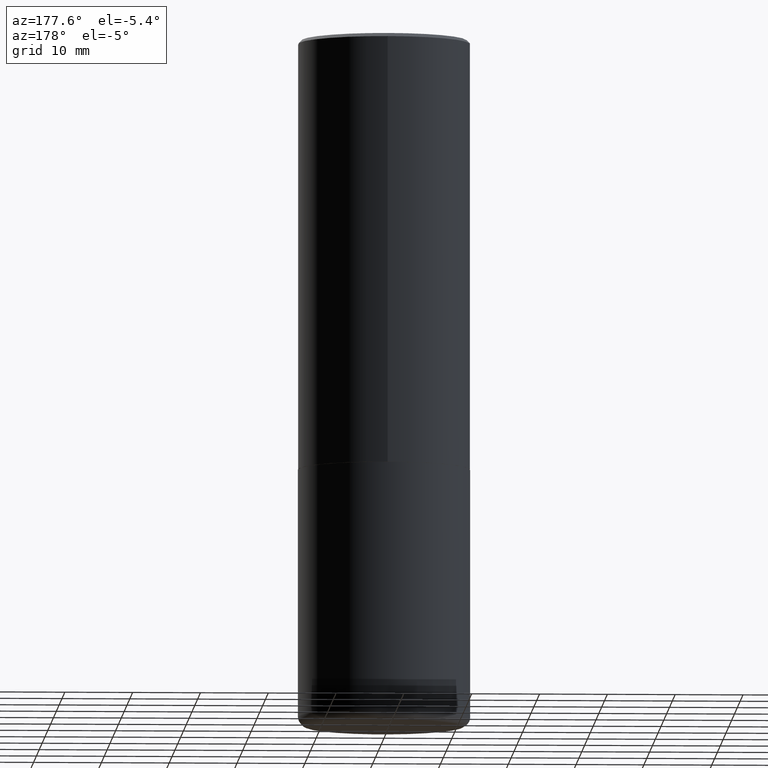
[diagram: clean part render]
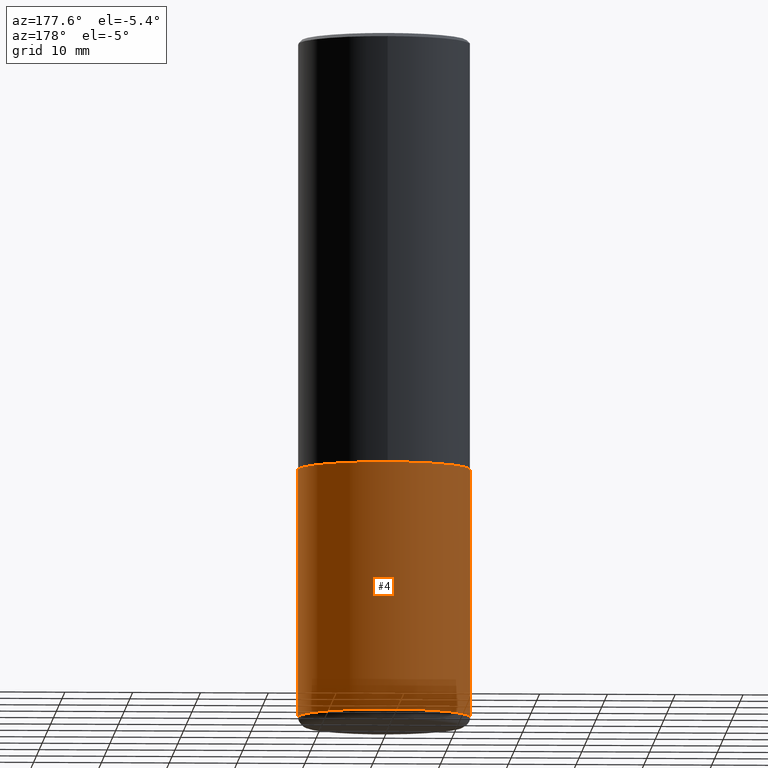
[diagram: same view with one face highlighted and labeled with its STEP entity id]
A machine part, auxiliary view. The second image highlights one B-rep face of the part: STEP entity #4.
In plain terms, the highlighted cylindrical surface (partial cylindrical patch) has radius 12.7 mm, axis along (-0, 0, 1).
Its self-contained STEP definition (entity closure, byte-faithful):
#4 = ADVANCED_FACE ( 'NONE', ( #234 ), #270, .T. ) ;
#19 = AXIS2_PLACEMENT_3D ( 'NONE', #182, #122, #336 ) ;
#22 = CIRCLE ( 'NONE', #19, 0.5000000000000001110 ) ;
#30 = VERTEX_POINT ( 'NONE', #110 ) ;
#55 = CARTESIAN_POINT ( 'NONE',  ( 0.5000000000000001110, -1.724791781388512737E-14, -3.939999999999999947 ) ) ;
#80 = AXIS2_PLACEMENT_3D ( 'NONE', #85, #184, #309 ) ;
#85 = CARTESIAN_POINT ( 'NONE',  ( 6.113672015462842613E-29, -8.728703347107864943E-15, -2.500000000000000000 ) ) ;
#107 = ORIENTED_EDGE ( 'NONE', *, *, #398, .T. ) ;
#108 = ORIENTED_EDGE ( 'NONE', *, *, #133, .T. ) ;
#110 = CARTESIAN_POINT ( 'NONE',  ( -0.5000000000000001110, -1.020372279624149151E-14, -3.939999999999999947 ) ) ;
#122 = DIRECTION ( 'NONE',  ( -2.445468806185136597E-29, 3.491481338843145583E-15, 1.000000000000000000 ) ) ;
#133 = EDGE_CURVE ( 'NONE', #30, #304, #403, .T. ) ;
#134 = ORIENTED_EDGE ( 'NONE', *, *, #150, .F. ) ;
#136 = EDGE_LOOP ( 'NONE', ( #107, #108, #134, #332 ) ) ;
#150 = EDGE_CURVE ( 'NONE', #359, #304, #310, .T. ) ;
#151 = CARTESIAN_POINT ( 'NONE',  ( -0.5000000000000000000, 3.552713678800500929E-15, -2.459467545127452891E-29 ) ) ;
#169 = DIRECTION ( 'NONE',  ( -2.445468806185136597E-29, 3.491481338843145583E-15, 1.000000000000000000 ) ) ;
#170 = CARTESIAN_POINT ( 'NONE',  ( 0.000000000000000000, 0.000000000000000000, 0.000000000000000000 ) ) ;
#177 = DIRECTION ( 'NONE',  ( -2.445468806185136877E-29, 3.491481338843145188E-15, 1.000000000000000000 ) ) ;
#182 = CARTESIAN_POINT ( 'NONE',  ( 9.635147096369438236E-29, -1.375643647504199401E-14, -3.939999999999999947 ) ) ;
#184 = DIRECTION ( 'NONE',  ( -2.445468806185136597E-29, 3.491481338843145583E-15, 1.000000000000000000 ) ) ;
#189 = EDGE_CURVE ( 'NONE', #224, #359, #286, .T. ) ;
#191 = CARTESIAN_POINT ( 'NONE',  ( 0.5000000000000000000, -1.222018468595099830E-14, -2.500000000000000000 ) ) ;
#203 = AXIS2_PLACEMENT_3D ( 'NONE', #170, #169, #364 ) ;
#208 = CARTESIAN_POINT ( 'NONE',  ( 0.5000000000000000000, -3.491481338843133355E-15, 2.438088387897967896E-29 ) ) ;
#224 = VERTEX_POINT ( 'NONE', #55 ) ;
#234 = FACE_OUTER_BOUND ( 'NONE', #136, .T. ) ;
#250 = DIRECTION ( 'NONE',  ( -2.445468806185136877E-29, 3.491481338843145188E-15, 1.000000000000000000 ) ) ;
#270 = CYLINDRICAL_SURFACE ( 'NONE', #203, 0.5000000000000000000 ) ;
#286 = LINE ( 'NONE', #208, #348 ) ;
#304 = VERTEX_POINT ( 'NONE', #324 ) ;
#309 = DIRECTION ( 'NONE',  ( 1.000000000000000000, -6.982962677686269077E-15, 0.000000000000000000 ) ) ;
#310 = CIRCLE ( 'NONE', #80, 0.5000000000000000000 ) ;
#324 = CARTESIAN_POINT ( 'NONE',  ( -0.5000000000000000000, -7.689856232274428549E-15, -2.500000000000000000 ) ) ;
#332 = ORIENTED_EDGE ( 'NONE', *, *, #189, .F. ) ;
#336 = DIRECTION ( 'NONE',  ( 1.000000000000000000, -6.982962677686265133E-15, 0.000000000000000000 ) ) ;
#348 = VECTOR ( 'NONE', #250, 39.37007874015748143 ) ;
#359 = VERTEX_POINT ( 'NONE', #191 ) ;
#360 = VECTOR ( 'NONE', #177, 39.37007874015748143 ) ;
#364 = DIRECTION ( 'NONE',  ( 1.000000000000000000, -6.982962677686266711E-15, 4.876176775795935793E-29 ) ) ;
#398 = EDGE_CURVE ( 'NONE', #224, #30, #22, .T. ) ;
#403 = LINE ( 'NONE', #151, #360 ) ;